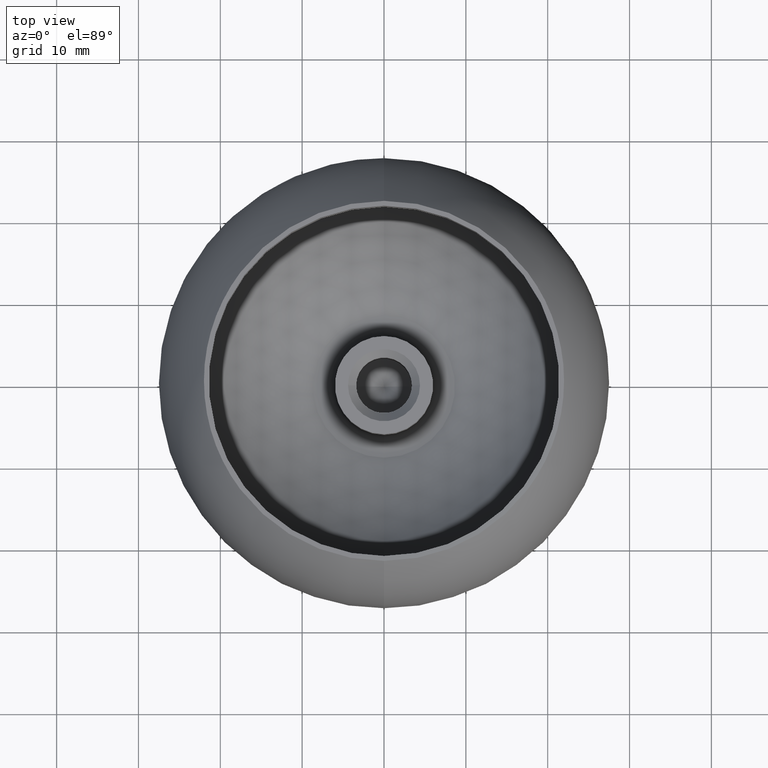
[diagram: clean part render]
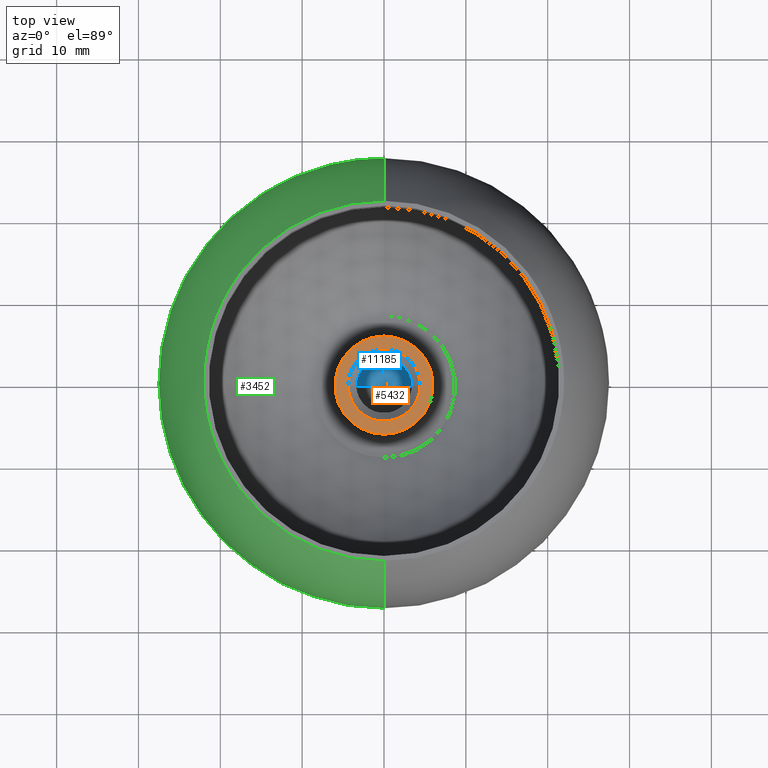
[diagram: same view with three faces highlighted in distinct colors, each labeled with its STEP entity id]
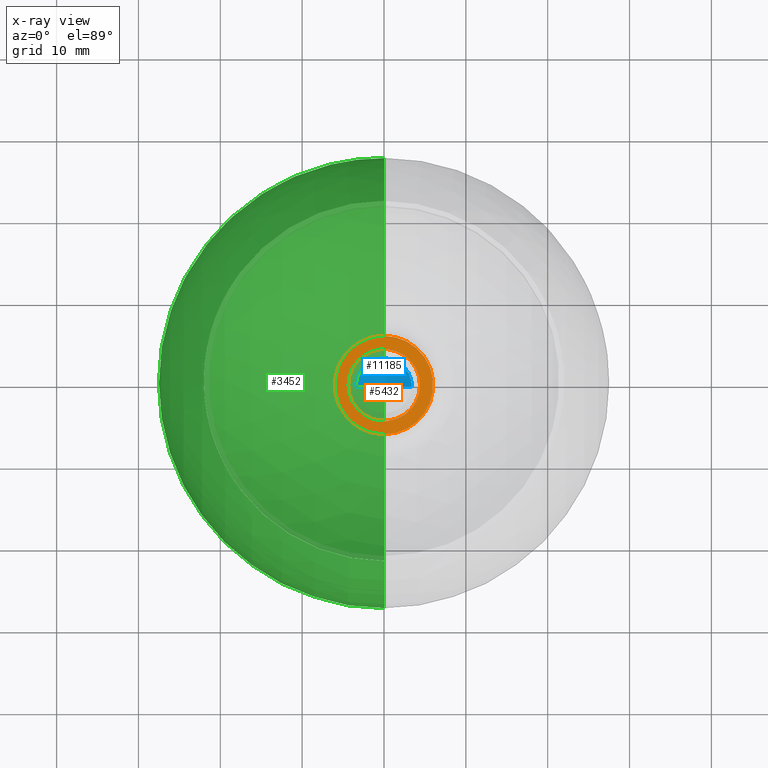
[diagram: x-ray of the same camera — body ghosted, the three highlighted faces saturated]
A machine part, top view with three faces highlighted in distinct colors.
The next image is the same camera in x-ray (body ghosted, the three faces saturated) — at least one of them is partly hidden behind the body in this view.
Their STEP definitions:

[orange] entity #5432 — the highlighted planar face has unit normal (0, 0, 1).
#53 = ORIENTED_EDGE ( 'NONE', *, *, #11688, .T. ) ;
#760 = DIRECTION ( 'NONE',  ( 0.0000000000000000000, 2.114042506676481100E-016, 1.000000000000000000 ) ) ;
#820 = CARTESIAN_POINT ( 'NONE',  ( 0.0000000000000000000, -2.092008537135757400E-015, -13.49999999999998900 ) ) ;
#1033 = EDGE_LOOP ( 'NONE', ( #6774, #1602 ) ) ;
#1251 = CIRCLE ( 'NONE', #9452, 4.399999999999986100 ) ;
#1474 = VERTEX_POINT ( 'NONE', #5780 ) ;
#1547 = VERTEX_POINT ( 'NONE', #5996 ) ;
#1579 = DIRECTION ( 'NONE',  ( 0.0000000000000000000, -1.000000000000000000, 3.942553354492755900E-016 ) ) ;
#1602 = ORIENTED_EDGE ( 'NONE', *, *, #1793, .F. ) ;
#1793 = EDGE_CURVE ( 'NONE', #1474, #1547, #12012, .T. ) ;
#2383 = CIRCLE ( 'NONE', #3140, 6.000000000000000900 ) ;
#2459 = DIRECTION ( 'NONE',  ( 0.0000000000000000000, -1.000000000000000000, 2.114042506676481100E-016 ) ) ;
#2647 = ORIENTED_EDGE ( 'NONE', *, *, #7731, .T. ) ;
#2680 = EDGE_LOOP ( 'NONE', ( #53, #2647 ) ) ;
#2748 = CARTESIAN_POINT ( 'NONE',  ( 4.399999999999986100, -4.017119658731438400E-015, -13.49999999999999100 ) ) ;
#3140 = AXIS2_PLACEMENT_3D ( 'NONE', #820, #7401, #5587 ) ;
#3320 = DIRECTION ( 'NONE',  ( 0.0000000000000000000, 1.000000000000000000, -2.891205793294677800E-016 ) ) ;
#3343 = VERTEX_POINT ( 'NONE', #2748 ) ;
#3545 = AXIS2_PLACEMENT_3D ( 'NONE', #11915, #10805, #3320 ) ;
#3550 = CARTESIAN_POINT ( 'NONE',  ( 0.0000000000000000000, -4.017119658731438400E-015, -13.49999999999999100 ) ) ;
#3633 = DIRECTION ( 'NONE',  ( -0.0000000000000000000, -2.114042506676481100E-016, -1.000000000000000000 ) ) ;
#4155 = FACE_OUTER_BOUND ( 'NONE', #1033, .T. ) ;
#4459 = CARTESIAN_POINT ( 'NONE',  ( 0.0000000000000000000, -2.092008537135757800E-015, -13.49999999999999100 ) ) ;
#5432 = ADVANCED_FACE ( 'NONE', ( #6967, #4155 ), #11027, .T. ) ;
#5587 = DIRECTION ( 'NONE',  ( 0.0000000000000000000, 1.000000000000000000, -2.891205793294677800E-016 ) ) ;
#5780 = CARTESIAN_POINT ( 'NONE',  ( 7.347880794884120700E-016, -6.000000000000002700, -13.49999999999998800 ) ) ;
#5996 = CARTESIAN_POINT ( 'NONE',  ( 0.0000000000000000000, 5.999999999999999100, -13.49999999999999100 ) ) ;
#6405 = EDGE_CURVE ( 'NONE', #1547, #1474, #2383, .T. ) ;
#6774 = ORIENTED_EDGE ( 'NONE', *, *, #6405, .F. ) ;
#6967 = FACE_BOUND ( 'NONE', #2680, .T. ) ;
#7401 = DIRECTION ( 'NONE',  ( -0.0000000000000000000, -2.114042506676481100E-016, -1.000000000000000000 ) ) ;
#7731 = EDGE_CURVE ( 'NONE', #8947, #3343, #1251, .T. ) ;
#8259 = DIRECTION ( 'NONE',  ( -0.0000000000000000000, -2.114042506676481100E-016, -1.000000000000000000 ) ) ;
#8384 = AXIS2_PLACEMENT_3D ( 'NONE', #4459, #760, #2459 ) ;
#8947 = VERTEX_POINT ( 'NONE', #11870 ) ;
#9094 = CARTESIAN_POINT ( 'NONE',  ( 0.0000000000000000000, -4.017119658731438400E-015, -13.49999999999999100 ) ) ;
#9452 = AXIS2_PLACEMENT_3D ( 'NONE', #3550, #3633, #12056 ) ;
#9743 = CIRCLE ( 'NONE', #11813, 4.399999999999986100 ) ;
#10805 = DIRECTION ( 'NONE',  ( -0.0000000000000000000, -2.114042506676481100E-016, -1.000000000000000000 ) ) ;
#11027 = PLANE ( 'NONE',  #8384 ) ;
#11688 = EDGE_CURVE ( 'NONE', #3343, #8947, #9743, .T. ) ;
#11813 = AXIS2_PLACEMENT_3D ( 'NONE', #9094, #8259, #1579 ) ;
#11870 = CARTESIAN_POINT ( 'NONE',  ( -4.399999999999986100, -3.478275067106605200E-015, -13.49999999999999100 ) ) ;
#11915 = CARTESIAN_POINT ( 'NONE',  ( 0.0000000000000000000, -2.092008537135757400E-015, -13.49999999999998900 ) ) ;
#12012 = CIRCLE ( 'NONE', #3545, 6.000000000000000900 ) ;
#12056 = DIRECTION ( 'NONE',  ( 0.0000000000000000000, -1.000000000000000000, 3.942553354492755900E-016 ) ) ;

[blue] entity #11185 — the highlighted conical surface has half-angle 59 deg.
#778 = DIRECTION ( 'NONE',  ( 1.000000000000000000, 0.0000000000000000000, 0.0000000000000000000 ) ) ;
#817 = VERTEX_POINT ( 'NONE', #4331 ) ;
#1585 = DIRECTION ( 'NONE',  ( -0.0000000000000000000, -0.0000000000000000000, 1.000000000000000000 ) ) ;
#2496 = DIRECTION ( 'NONE',  ( -0.8571673007021118900, 1.049727191138618100E-016, 0.5150380749100549300 ) ) ;
#3215 = CARTESIAN_POINT ( 'NONE',  ( 3.399999999999996400, -4.017119658731438400E-015, -22.49999999999999300 ) ) ;
#3346 = VERTEX_POINT ( 'NONE', #11145 ) ;
#3375 = CARTESIAN_POINT ( 'NONE',  ( -2.704736821466780800E-015, -4.017119658731438400E-015, -24.54292610469369900 ) ) ;
#4322 = CONICAL_SURFACE ( 'NONE', #7301, 3.399999999999996400, 1.029744258676653600 ) ;
#4331 = CARTESIAN_POINT ( 'NONE',  ( 3.399999999999996400, -4.017119658731438400E-015, -22.49999999999999300 ) ) ;
#4453 = CARTESIAN_POINT ( 'NONE',  ( -3.399999999999996400, -3.600739747021338800E-015, -22.49999999999999300 ) ) ;
#4454 = VECTOR ( 'NONE', #10707, 1000.000000000000000 ) ;
#4809 = LINE ( 'NONE', #4453, #8055 ) ;
#4847 = ORIENTED_EDGE ( 'NONE', *, *, #6344, .T. ) ;
#5366 = EDGE_CURVE ( 'NONE', #7226, #817, #10032, .T. ) ;
#5433 = DIRECTION ( 'NONE',  ( -0.0000000000000000000, -0.0000000000000000000, 1.000000000000000000 ) ) ;
#5516 = CIRCLE ( 'NONE', #7816, 3.399999999999996400 ) ;
#6344 = EDGE_CURVE ( 'NONE', #817, #3346, #5516, .T. ) ;
#7116 = EDGE_CURVE ( 'NONE', #7226, #3346, #4809, .T. ) ;
#7226 = VERTEX_POINT ( 'NONE', #3375 ) ;
#7301 = AXIS2_PLACEMENT_3D ( 'NONE', #8105, #1585, #11800 ) ;
#7410 = ORIENTED_EDGE ( 'NONE', *, *, #7116, .F. ) ;
#7816 = AXIS2_PLACEMENT_3D ( 'NONE', #9092, #5433, #778 ) ;
#8055 = VECTOR ( 'NONE', #2496, 1000.000000000000000 ) ;
#8105 = CARTESIAN_POINT ( 'NONE',  ( 0.0000000000000000000, -4.017119658731438400E-015, -22.49999999999999300 ) ) ;
#9092 = CARTESIAN_POINT ( 'NONE',  ( 0.0000000000000000000, -4.017119658731438400E-015, -22.49999999999999300 ) ) ;
#9412 = ORIENTED_EDGE ( 'NONE', *, *, #5366, .T. ) ;
#10032 = LINE ( 'NONE', #3215, #4454 ) ;
#10459 = FACE_OUTER_BOUND ( 'NONE', #11370, .T. ) ;
#10707 = DIRECTION ( 'NONE',  ( 0.8571673007021118900, 0.0000000000000000000, 0.5150380749100549300 ) ) ;
#11145 = CARTESIAN_POINT ( 'NONE',  ( -3.399999999999996400, -3.600739747021338800E-015, -22.49999999999999300 ) ) ;
#11185 = ADVANCED_FACE ( 'NONE', ( #10459 ), #4322, .F. ) ;
#11370 = EDGE_LOOP ( 'NONE', ( #7410, #9412, #4847 ) ) ;
#11800 = DIRECTION ( 'NONE',  ( 1.000000000000000000, 0.0000000000000000000, 0.0000000000000000000 ) ) ;

[green] entity #3452 — the highlighted spherical surface has radius 27.5 mm.
#372 = CARTESIAN_POINT ( 'NONE',  ( 0.0000000000000000000, 0.0000000000000000000, 0.0000000000000000000 ) ) ;
#374 = DIRECTION ( 'NONE',  ( 0.0000000000000000000, 1.000000000000000000, -1.577021341797098100E-016 ) ) ;
#653 = AXIS2_PLACEMENT_3D ( 'NONE', #9305, #6363, #5414 ) ;
#803 = CIRCLE ( 'NONE', #8388, 21.99999999999998900 ) ;
#846 = VERTEX_POINT ( 'NONE', #4821 ) ;
#1847 = SPHERICAL_SURFACE ( 'NONE', #5611, 27.50000000000000000 ) ;
#1938 = ORIENTED_EDGE ( 'NONE', *, *, #11112, .T. ) ;
#2477 = CARTESIAN_POINT ( 'NONE',  ( 0.0000000000000000000, 21.99999999999999300, 16.50000000000000700 ) ) ;
#3100 = VERTEX_POINT ( 'NONE', #7228 ) ;
#3452 = ADVANCED_FACE ( 'NONE', ( #11846 ), #1847, .T. ) ;
#3776 = EDGE_CURVE ( 'NONE', #4696, #3100, #5566, .T. ) ;
#4696 = VERTEX_POINT ( 'NONE', #2477 ) ;
#4821 = CARTESIAN_POINT ( 'NONE',  ( 2.694222958124175600E-015, -21.99999999999998600, 16.50000000000001400 ) ) ;
#5380 = AXIS2_PLACEMENT_3D ( 'NONE', #6613, #8484, #9268 ) ;
#5414 = DIRECTION ( 'NONE',  ( 0.0000000000000000000, 0.0000000000000000000, 1.000000000000000000 ) ) ;
#5566 = CIRCLE ( 'NONE', #653, 27.50000000000000000 ) ;
#5611 = AXIS2_PLACEMENT_3D ( 'NONE', #372, #9726, #5885 ) ;
#5885 = DIRECTION ( 'NONE',  ( 0.0000000000000000000, 1.000000000000000000, -2.114042506676481100E-016 ) ) ;
#6363 = DIRECTION ( 'NONE',  ( -1.000000000000000000, 0.0000000000000000000, 0.0000000000000000000 ) ) ;
#6613 = CARTESIAN_POINT ( 'NONE',  ( 0.0000000000000000000, 0.0000000000000000000, 0.0000000000000000000 ) ) ;
#7228 = CARTESIAN_POINT ( 'NONE',  ( 0.0000000000000000000, -4.129727544532711700E-015, -27.50000000000000000 ) ) ;
#8067 = EDGE_LOOP ( 'NONE', ( #11845, #1938, #8798 ) ) ;
#8388 = AXIS2_PLACEMENT_3D ( 'NONE', #8984, #11588, #374 ) ;
#8484 = DIRECTION ( 'NONE',  ( 1.000000000000000000, 1.224646799147353200E-016, -2.588955389062799600E-032 ) ) ;
#8798 = ORIENTED_EDGE ( 'NONE', *, *, #3776, .T. ) ;
#8984 = CARTESIAN_POINT ( 'NONE',  ( 0.0000000000000000000, 4.250118982893685300E-015, 16.50000000000001100 ) ) ;
#9268 = DIRECTION ( 'NONE',  ( -1.224646799147353200E-016, 1.000000000000000000, 0.0000000000000000000 ) ) ;
#9305 = CARTESIAN_POINT ( 'NONE',  ( 0.0000000000000000000, 0.0000000000000000000, 0.0000000000000000000 ) ) ;
#9726 = DIRECTION ( 'NONE',  ( 1.000000000000000000, -0.0000000000000000000, 0.0000000000000000000 ) ) ;
#9978 = EDGE_CURVE ( 'NONE', #846, #3100, #10469, .T. ) ;
#10469 = CIRCLE ( 'NONE', #5380, 27.50000000000000000 ) ;
#11112 = EDGE_CURVE ( 'NONE', #846, #4696, #803, .T. ) ;
#11588 = DIRECTION ( 'NONE',  ( -0.0000000000000000000, -2.114042506676481100E-016, -1.000000000000000000 ) ) ;
#11845 = ORIENTED_EDGE ( 'NONE', *, *, #9978, .F. ) ;
#11846 = FACE_OUTER_BOUND ( 'NONE', #8067, .T. ) ;